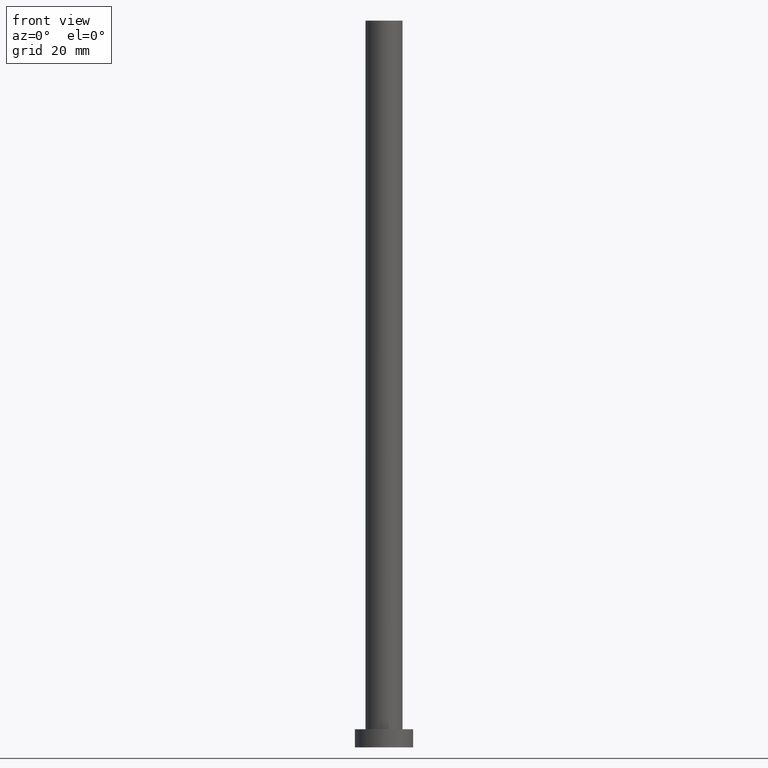
[diagram: clean part render]
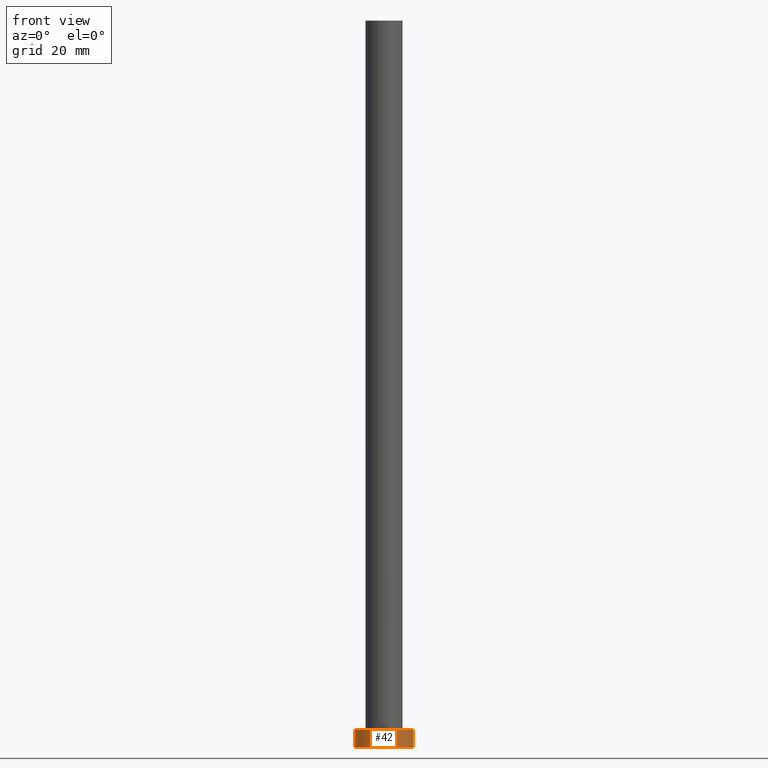
[diagram: same view with one face highlighted and labeled with its STEP entity id]
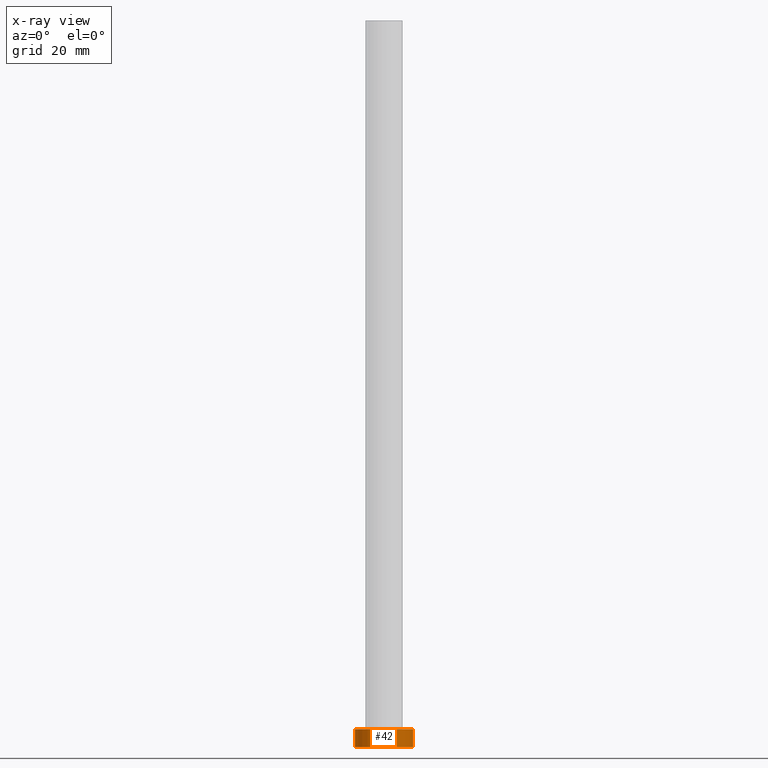
[diagram: x-ray of the same camera — body ghosted, the highlighted face saturated]
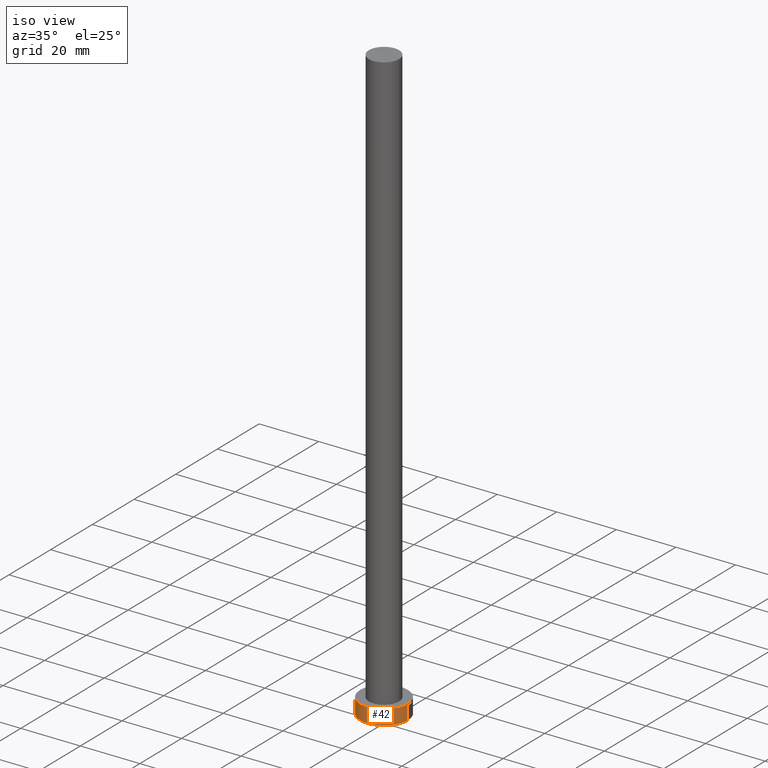
[diagram: same view with one face highlighted and labeled with its STEP entity id]
A machine part, front view. The second image highlights one B-rep face of the part: STEP entity #42.
The next image is the same camera in x-ray: the body ghosted, the highlighted face saturated — about 0% of this face is hidden behind the body in this view.
A second angle (iso view) of the same face is appended — the face is thin or edge-on in the first view.
In plain terms, the highlighted cylindrical surface (edge-blend (fillet) strip) has radius 8 mm, axis along (-0, -0, -1).
Its self-contained STEP definition (entity closure, byte-faithful):
#19 = AXIS2_PLACEMENT_3D ( 'NONE', #157, #56, #137 ) ;
#29 = FACE_OUTER_BOUND ( 'NONE', #158, .T. ) ;
#41 = VERTEX_POINT ( 'NONE', #46 ) ;
#42 = ADVANCED_FACE ( 'NONE', ( #29 ), #230, .T. ) ;
#46 = CARTESIAN_POINT ( 'NONE',  ( 8.000000000000000000, 9.797174393178825657E-16, 5.000000000000000000 ) ) ;
#48 = DIRECTION ( 'NONE',  ( -1.000000000000000000, 0.000000000000000000, 0.000000000000000000 ) ) ;
#56 = DIRECTION ( 'NONE',  ( 0.000000000000000000, 0.000000000000000000, 1.000000000000000000 ) ) ;
#58 = EDGE_CURVE ( 'NONE', #238, #70, #227, .T. ) ;
#70 = VERTEX_POINT ( 'NONE', #251 ) ;
#78 = DIRECTION ( 'NONE',  ( -0.000000000000000000, -0.000000000000000000, -1.000000000000000000 ) ) ;
#79 = CIRCLE ( 'NONE', #19, 8.000000000000000000 ) ;
#88 = CARTESIAN_POINT ( 'NONE',  ( -8.000000000000000000, 0.000000000000000000, 5.000000000000000000 ) ) ;
#91 = DIRECTION ( 'NONE',  ( 1.000000000000000000, 0.000000000000000000, 0.000000000000000000 ) ) ;
#111 = DIRECTION ( 'NONE',  ( -0.000000000000000000, -0.000000000000000000, -1.000000000000000000 ) ) ;
#137 = DIRECTION ( 'NONE',  ( 1.000000000000000000, 0.000000000000000000, 0.000000000000000000 ) ) ;
#155 = AXIS2_PLACEMENT_3D ( 'NONE', #244, #210, #91 ) ;
#157 = CARTESIAN_POINT ( 'NONE',  ( 0.000000000000000000, 0.000000000000000000, 5.000000000000000000 ) ) ;
#158 = EDGE_LOOP ( 'NONE', ( #242, #215, #166, #240 ) ) ;
#166 = ORIENTED_EDGE ( 'NONE', *, *, #191, .T. ) ;
#173 = CARTESIAN_POINT ( 'NONE',  ( 8.000000000000000000, 9.797174393178825657E-16, 5.000000000000000000 ) ) ;
#179 = AXIS2_PLACEMENT_3D ( 'NONE', #185, #111, #48 ) ;
#184 = VERTEX_POINT ( 'NONE', #88 ) ;
#185 = CARTESIAN_POINT ( 'NONE',  ( 0.000000000000000000, 0.000000000000000000, 5.000000000000000000 ) ) ;
#187 = VECTOR ( 'NONE', #78, 1000.000000000000000 ) ;
#189 = CARTESIAN_POINT ( 'NONE',  ( -8.000000000000000000, 0.000000000000000000, 5.000000000000000000 ) ) ;
#190 = LINE ( 'NONE', #173, #187 ) ;
#191 = EDGE_CURVE ( 'NONE', #184, #238, #213, .T. ) ;
#209 = EDGE_CURVE ( 'NONE', #41, #70, #190, .T. ) ;
#210 = DIRECTION ( 'NONE',  ( 0.000000000000000000, 0.000000000000000000, 1.000000000000000000 ) ) ;
#212 = VECTOR ( 'NONE', #214, 1000.000000000000000 ) ;
#213 = LINE ( 'NONE', #189, #212 ) ;
#214 = DIRECTION ( 'NONE',  ( -0.000000000000000000, -0.000000000000000000, -1.000000000000000000 ) ) ;
#215 = ORIENTED_EDGE ( 'NONE', *, *, #217, .F. ) ;
#217 = EDGE_CURVE ( 'NONE', #184, #41, #79, .T. ) ;
#227 = CIRCLE ( 'NONE', #155, 8.000000000000000000 ) ;
#230 = CYLINDRICAL_SURFACE ( 'NONE', #179, 8.000000000000000000 ) ;
#232 = CARTESIAN_POINT ( 'NONE',  ( -8.000000000000000000, 0.000000000000000000, 0.000000000000000000 ) ) ;
#238 = VERTEX_POINT ( 'NONE', #232 ) ;
#240 = ORIENTED_EDGE ( 'NONE', *, *, #58, .T. ) ;
#242 = ORIENTED_EDGE ( 'NONE', *, *, #209, .F. ) ;
#244 = CARTESIAN_POINT ( 'NONE',  ( 0.000000000000000000, 0.000000000000000000, 0.000000000000000000 ) ) ;
#251 = CARTESIAN_POINT ( 'NONE',  ( 8.000000000000000000, 9.797174393178825657E-16, 0.000000000000000000 ) ) ;